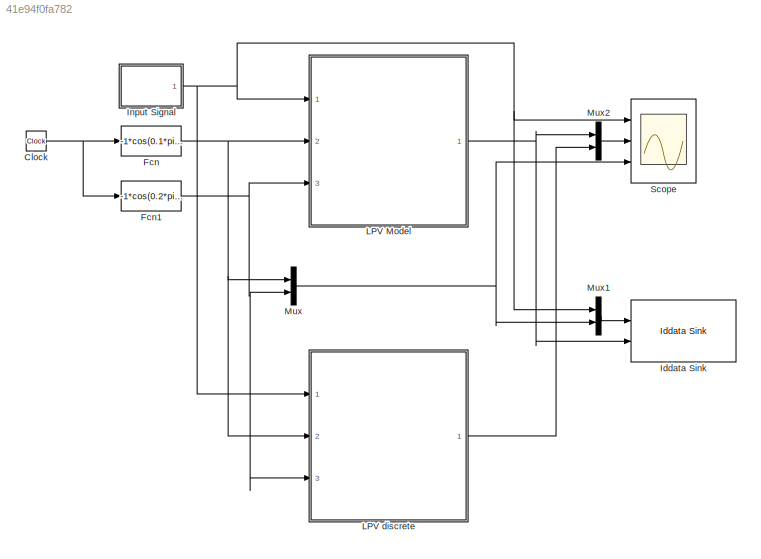
MODEL slx_41e94f0fa782
KIND model
CONFIG AbsTol = auto
CONFIG FixedStep = auto
CONFIG MaxStep = auto
CONFIG MinStep = auto
CONFIG RelTol = 1e-3
CONFIG SampleTimeConstraint = Unconstrained
CONFIG Solver = VariableStepAuto
CONFIG SolverMode = Auto
CONFIG SolverName = VariableStepAuto
CONFIG StartTime = 0.0
CONFIG StopTime = 100
BLOCK [Clock] Clock
BLOCK [Fcn] Fcn
  Expr = -1*cos(0.1*pi*u)*exp(-u/100)
BLOCK [Fcn] Fcn1
  Expr = -1*cos(0.2*pi*u)*exp(-u/100)
BLOCK [Reference] Iddata Sink  REF=slident/Iddata Sink  (lib defined in mdl_f7d4911ca73a)
  Ports = [2]
  SourceBlock = slident/Iddata Sink
  SourceType = IDDATA Sink
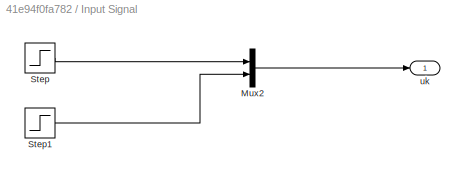
BLOCK [SubSystem] Input Signal
  Ports = [0, 1]
  RequestExecContextInheritance = off
  Variant = off
BLOCK [Mux] Input Signal/Mux2
  DisplayOption = bar
  Inputs = 2
  Ports = [2, 1]
BLOCK [Step] Input Signal/Step
  SampleTime = 0
  Time = 30
BLOCK [Step] Input Signal/Step1
  SampleTime = 0
  Time = 10
BLOCK [Outport] Input Signal/uk
  IconDisplay = Port number
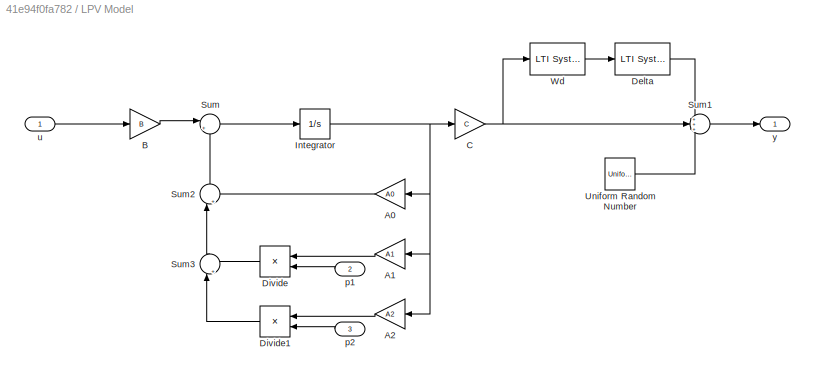
BLOCK [SubSystem] LPV Model
  Ports = [3, 1]
  RequestExecContextInheritance = off
  Variant = off
BLOCK [Gain] LPV Model/A0
  Gain = A0
  Multiplication = Matrix(K*u)
  OutDataTypeStr = Inherit: Inherit via internal rule
  ParamDataTypeStr = Inherit: Inherit via internal rule
  SaturateOnIntegerOverflow = off
BLOCK [Gain] LPV Model/A1
  Gain = A1
  Multiplication = Matrix(K*u)
  OutDataTypeStr = Inherit: Inherit via internal rule
  ParamDataTypeStr = Inherit: Inherit via internal rule
  SaturateOnIntegerOverflow = off
BLOCK [Gain] LPV Model/A2
  Gain = A2
  Multiplication = Matrix(K*u)
  OutDataTypeStr = Inherit: Inherit via internal rule
  ParamDataTypeStr = Inherit: Inherit via internal rule
  SaturateOnIntegerOverflow = off
BLOCK [Gain] LPV Model/B
  Gain = B
  Multiplication = Matrix(K*u)
  OutDataTypeStr = Inherit: Inherit via internal rule
  ParamDataTypeStr = Inherit: Inherit via internal rule
  SaturateOnIntegerOverflow = off
BLOCK [Gain] LPV Model/C
  Gain = C
  Multiplication = Matrix(K*u)
  OutDataTypeStr = Inherit: Inherit via internal rule
  ParamDataTypeStr = Inherit: Inherit via internal rule
  SaturateOnIntegerOverflow = off
BLOCK [Reference] LPV Model/Delta  REF=cstblocks/LTI System
  Ports = [1, 1]
  SourceBlock = cstblocks/LTI System
  SourceType = LTI Block
BLOCK [Product] LPV Model/Divide
  InputSameDT = off
  Inputs = **
  OutDataTypeStr = Inherit: Inherit via internal rule
  Ports = [2, 1]
  RndMeth = Floor
  SaturateOnIntegerOverflow = off
BLOCK [Product] LPV Model/Divide1
  InputSameDT = off
  Inputs = **
  OutDataTypeStr = Inherit: Inherit via internal rule
  Ports = [2, 1]
  RndMeth = Floor
  SaturateOnIntegerOverflow = off
BLOCK [Integrator] LPV Model/Integrator
  Ports = [1, 1]
BLOCK [Sum] LPV Model/Sum
  IconShape = round
  InputSameDT = off
  Inputs = |++
  OutDataTypeStr = Inherit: Inherit via internal rule
  Ports = [2, 1]
  SaturateOnIntegerOverflow = off
BLOCK [Sum] LPV Model/Sum1
  IconShape = round
  InputSameDT = off
  Inputs = +++
  OutDataTypeStr = Inherit: Inherit via internal rule
  Ports = [3, 1]
  SaturateOnIntegerOverflow = off
BLOCK [Sum] LPV Model/Sum2
  IconShape = round
  InputSameDT = off
  Inputs = |++
  OutDataTypeStr = Inherit: Inherit via internal rule
  Ports = [2, 1]
  SaturateOnIntegerOverflow = off
BLOCK [Sum] LPV Model/Sum3
  IconShape = round
  InputSameDT = off
  Inputs = |++
  OutDataTypeStr = Inherit: Inherit via internal rule
  Ports = [2, 1]
  SaturateOnIntegerOverflow = off
BLOCK [UniformRandomNumber] LPV Model/Uniform Random Number
  Maximum = 0.1
  Minimum = -0.1
  SampleTime = Ts
BLOCK [Reference] LPV Model/Wd  REF=cstblocks/LTI System
  Ports = [1, 1]
  SourceBlock = cstblocks/LTI System
  SourceType = LTI Block
BLOCK [Inport] LPV Model/p1
  IconDisplay = Port number
  Port = 2
BLOCK [Inport] LPV Model/p2
  IconDisplay = Port number
  Port = 3
BLOCK [Inport] LPV Model/u
  IconDisplay = Port number
BLOCK [Outport] LPV Model/y
  IconDisplay = Port number
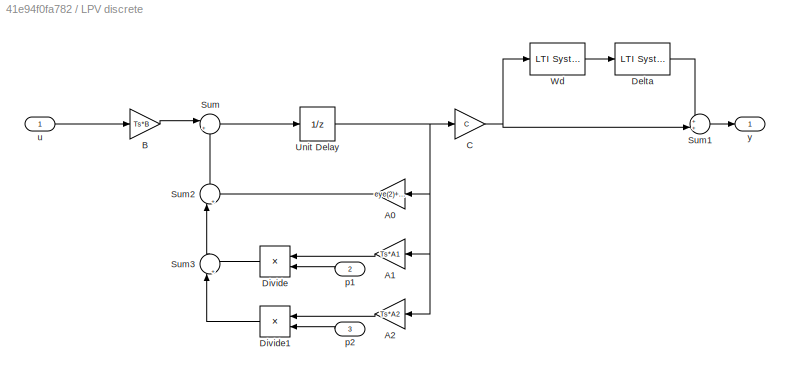
BLOCK [SubSystem] LPV discrete
  Ports = [3, 1]
  RequestExecContextInheritance = off
  Variant = off
BLOCK [Gain] LPV discrete/A0
  Gain = eye(2)+Ts*A0
  Multiplication = Matrix(K*u)
  OutDataTypeStr = Inherit: Inherit via internal rule
  ParamDataTypeStr = Inherit: Inherit via internal rule
  SaturateOnIntegerOverflow = off
BLOCK [Gain] LPV discrete/A1
  Gain = Ts*A1
  Multiplication = Matrix(K*u)
  OutDataTypeStr = Inherit: Inherit via internal rule
  ParamDataTypeStr = Inherit: Inherit via internal rule
  SaturateOnIntegerOverflow = off
BLOCK [Gain] LPV discrete/A2
  Gain = Ts*A2
  Multiplication = Matrix(K*u)
  OutDataTypeStr = Inherit: Inherit via internal rule
  ParamDataTypeStr = Inherit: Inherit via internal rule
  SaturateOnIntegerOverflow = off
BLOCK [Gain] LPV discrete/B
  Gain = Ts*B
  Multiplication = Matrix(K*u)
  OutDataTypeStr = Inherit: Inherit via internal rule
  ParamDataTypeStr = Inherit: Inherit via internal rule
  SaturateOnIntegerOverflow = off
BLOCK [Gain] LPV discrete/C
  Gain = C
  Multiplication = Matrix(K*u)
  OutDataTypeStr = Inherit: Inherit via internal rule
  ParamDataTypeStr = Inherit: Inherit via internal rule
  SaturateOnIntegerOverflow = off
BLOCK [Reference] LPV discrete/Delta  REF=cstblocks/LTI System
  Ports = [1, 1]
  SourceBlock = cstblocks/LTI System
  SourceType = LTI Block
BLOCK [Product] LPV discrete/Divide
  InputSameDT = off
  Inputs = **
  OutDataTypeStr = Inherit: Inherit via internal rule
  Ports = [2, 1]
  RndMeth = Floor
  SaturateOnIntegerOverflow = off
BLOCK [Product] LPV discrete/Divide1
  InputSameDT = off
  Inputs = **
  OutDataTypeStr = Inherit: Inherit via internal rule
  Ports = [2, 1]
  RndMeth = Floor
  SaturateOnIntegerOverflow = off
BLOCK [Sum] LPV discrete/Sum
  IconShape = round
  InputSameDT = off
  Inputs = |++
  OutDataTypeStr = Inherit: Inherit via internal rule
  Ports = [2, 1]
  SaturateOnIntegerOverflow = off
BLOCK [Sum] LPV discrete/Sum1
  IconShape = round
  InputSameDT = off
  Inputs = ++|
  OutDataTypeStr = Inherit: Inherit via internal rule
  Ports = [2, 1]
  SaturateOnIntegerOverflow = off
BLOCK [Sum] LPV discrete/Sum2
  IconShape = round
  InputSameDT = off
  Inputs = |++
  OutDataTypeStr = Inherit: Inherit via internal rule
  Ports = [2, 1]
  SaturateOnIntegerOverflow = off
BLOCK [Sum] LPV discrete/Sum3
  IconShape = round
  InputSameDT = off
  Inputs = |++
  OutDataTypeStr = Inherit: Inherit via internal rule
  Ports = [2, 1]
  SaturateOnIntegerOverflow = off
BLOCK [UnitDelay] LPV discrete/Unit Delay
  InputProcessing = Elements as channels (sample based)
  SampleTime = Ts
BLOCK [Reference] LPV discrete/Wd  REF=cstblocks/LTI System
  Ports = [1, 1]
  SourceBlock = cstblocks/LTI System
  SourceType = LTI Block
BLOCK [Inport] LPV discrete/p1
  IconDisplay = Port number
  Port = 2
BLOCK [Inport] LPV discrete/p2
  IconDisplay = Port number
  Port = 3
BLOCK [Inport] LPV discrete/u
  IconDisplay = Port number
BLOCK [Outport] LPV discrete/y
  IconDisplay = Port number
BLOCK [Mux] Mux
  DisplayOption = bar
  Inputs = 2
  Ports = [2, 1]
BLOCK [Mux] Mux1
  DisplayOption = bar
  Inputs = [2 2]
  Ports = [2, 1]
BLOCK [Mux] Mux2
  DisplayOption = bar
  Inputs = [2 2]
  Ports = [2, 1]
BLOCK [Scope] Scope
  NumInputPorts = 3
  Ports = [3]
  ScopeSpecificationString = Simulink.scopes.TimeScopeBlockCfg('CurrentConfiguration', extmgr.ConfigurationSet(extmgr.Configuration('Core','General UI',true),extmgr.Configuration('Core','Source UI',true),extmgr.Configuration('Sources','WiredSimulink',true),extmgr.Configuration('Visuals','Time Domain',true,'SerializedDisplays',{struct('MinYLimReal','-0.125','MaxYLimReal','1.125','YLabelReal','','MinYLimMag','0.00000','MaxYLimM...<+2808ch>
NET Clock:1 -> Fcn1:1, Fcn:1
NET Fcn1:1 -> LPV Model:3, LPV discrete:3, Mux:2
NET Fcn:1 -> LPV Model:2, LPV discrete:2, Mux:1
LINE Input Signal/Mux2:1 -> Input Signal/uk:1
LINE Input Signal/Step1:1 -> Input Signal/Mux2:2
LINE Input Signal/Step:1 -> Input Signal/Mux2:1
NET Input Signal:1 -> LPV Model:1, LPV discrete:1, Mux1:1, Scope:1
LINE LPV Model/A0:1 -> LPV Model/Sum2:2
LINE LPV Model/A1:1 -> LPV Model/Divide:1
LINE LPV Model/A2:1 -> LPV Model/Divide1:1
LINE LPV Model/B:1 -> LPV Model/Sum:1
NET LPV Model/C:1 -> LPV Model/Sum1:2, LPV Model/Wd:1
LINE LPV Model/Delta:1 -> LPV Model/Sum1:1
LINE LPV Model/Divide1:1 -> LPV Model/Sum3:1
LINE LPV Model/Divide:1 -> LPV Model/Sum3:2
NET LPV Model/Integrator:1 -> LPV Model/A0:1, LPV Model/A1:1, LPV Model/A2:1, LPV Model/C:1
LINE LPV Model/Sum1:1 -> LPV Model/y:1
LINE LPV Model/Sum2:1 -> LPV Model/Sum:2
LINE LPV Model/Sum3:1 -> LPV Model/Sum2:1
LINE LPV Model/Sum:1 -> LPV Model/Integrator:1
LINE LPV Model/Uniform Random Number:1 -> LPV Model/Sum1:3
LINE LPV Model/Wd:1 -> LPV Model/Delta:1
LINE LPV Model/p1:1 -> LPV Model/Divide:2
LINE LPV Model/p2:1 -> LPV Model/Divide1:2
LINE LPV Model/u:1 -> LPV Model/B:1
NET LPV Model:1 -> Iddata Sink:2, Mux2:1
LINE LPV discrete/A0:1 -> LPV discrete/Sum2:2
LINE LPV discrete/A1:1 -> LPV discrete/Divide:1
LINE LPV discrete/A2:1 -> LPV discrete/Divide1:1
LINE LPV discrete/B:1 -> LPV discrete/Sum:1
NET LPV discrete/C:1 -> LPV discrete/Sum1:2, LPV discrete/Wd:1
LINE LPV discrete/Delta:1 -> LPV discrete/Sum1:1
LINE LPV discrete/Divide1:1 -> LPV discrete/Sum3:1
LINE LPV discrete/Divide:1 -> LPV discrete/Sum3:2
LINE LPV discrete/Sum1:1 -> LPV discrete/y:1
LINE LPV discrete/Sum2:1 -> LPV discrete/Sum:2
LINE LPV discrete/Sum3:1 -> LPV discrete/Sum2:1
LINE LPV discrete/Sum:1 -> LPV discrete/Unit Delay:1
NET LPV discrete/Unit Delay:1 -> LPV discrete/A0:1, LPV discrete/A1:1, LPV discrete/A2:1, LPV discrete/C:1
LINE LPV discrete/Wd:1 -> LPV discrete/Delta:1
LINE LPV discrete/p1:1 -> LPV discrete/Divide:2
LINE LPV discrete/p2:1 -> LPV discrete/Divide1:2
LINE LPV discrete/u:1 -> LPV discrete/B:1
LINE LPV discrete:1 -> Mux2:2
LINE Mux1:1 -> Iddata Sink:1
LINE Mux2:1 -> Scope:2
NET Mux:1 -> Mux1:2, Scope:3
note: NET lines group one-source signal fan-out (src -> all destinations, sorted); 1:1 wires keep LINE
